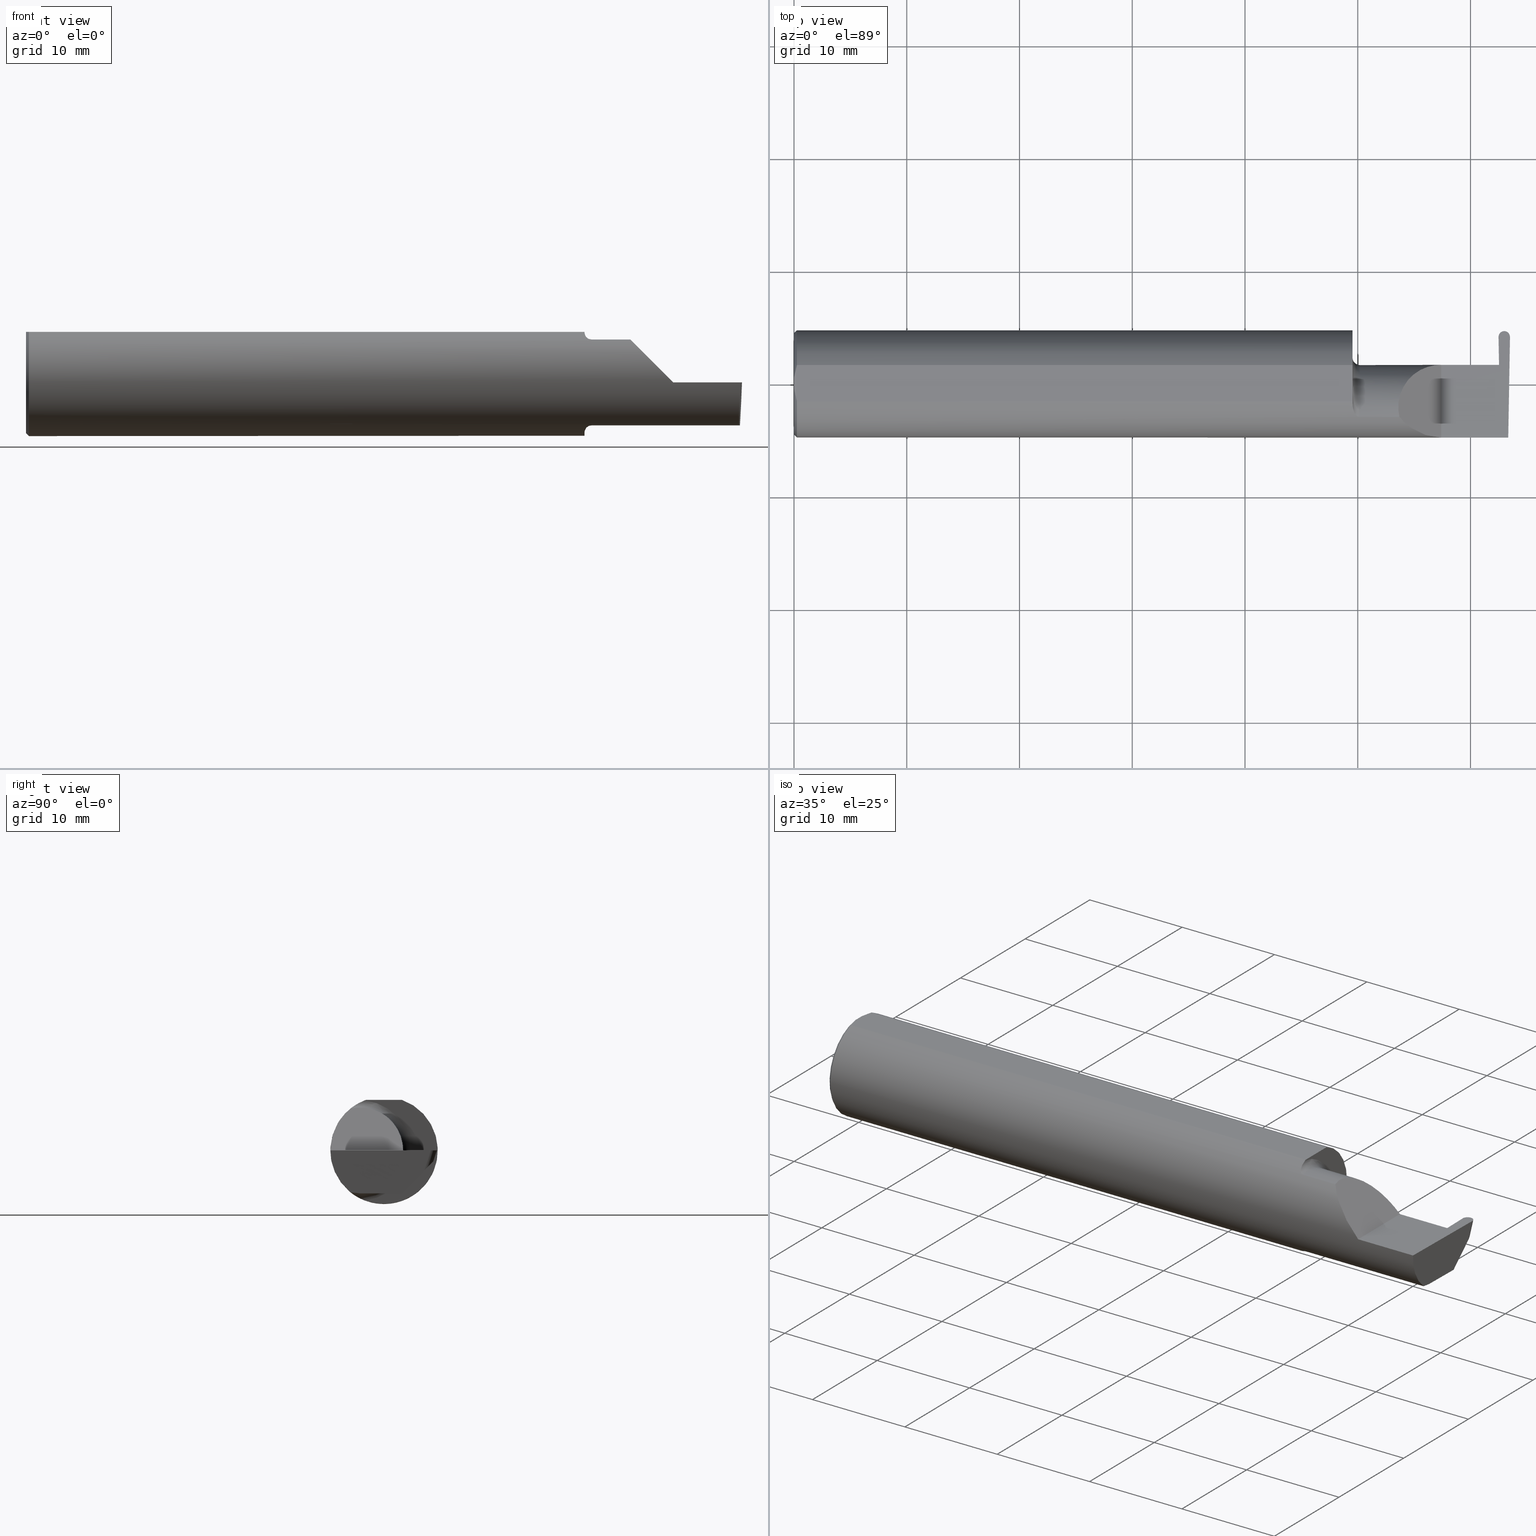
[diagram: canonical four-view strip — front | top / right | iso, engineering-drawing reading convention]
A machine part, canonical four-view strip (front | top / right | iso — engineering-drawing reading convention). The complete STEP part file that produces these views, byte-faithful:
ISO-10303-21;
HEADER;
FILE_DESCRIPTION (( 'STEP AP203' ),
    '1' );
FILE_NAME ('222104-GFR039-8.STEP',
    '2024-06-21T20:36:51',
    ( '' ),
    ( '' ),
    'SwSTEP 2.0',
    'SolidWorks 2022',
    '' );
FILE_SCHEMA (( 'CONFIG_CONTROL_DESIGN' ));
ENDSEC;

DATA;
#1 = DIRECTION ( 'NONE',  ( 0.7071067811865426878, 0.000000000000000000, -0.7071067811865523467 ) ) ;
#2 = ORIENTED_EDGE ( 'NONE', *, *, #375, .T. ) ;
#3 = DIRECTION ( 'NONE',  ( -1.000000000000000000, -0.000000000000000000, -0.000000000000000000 ) ) ;
#4 = AXIS2_PLACEMENT_3D ( 'NONE', #39, #424, #208 ) ;
#5 = DIRECTION ( 'NONE',  ( -1.000000000000000000, 2.008845683092791531E-16, -0.000000000000000000 ) ) ;
#6 = ORIENTED_EDGE ( 'NONE', *, *, #239, .T. ) ;
#7 = CONICAL_SURFACE ( 'NONE', #605, 0.1773500000000005072, 0.7853981633974551624 ) ;
#8 = VERTEX_POINT ( 'NONE', #708 ) ;
#9 = LINE ( 'NONE', #223, #251 ) ;
#10 = ORIENTED_EDGE ( 'NONE', *, *, #500, .T. ) ;
#11 = CARTESIAN_POINT ( 'NONE',  ( 1.972161949849308593, -0.1172600179964061462, 0.1461167706989260351 ) ) ;
#12 = DIRECTION ( 'NONE',  ( 0.000000000000000000, 0.000000000000000000, 1.000000000000000000 ) ) ;
#13 = VERTEX_POINT ( 'NONE', #263 ) ;
#14 = CARTESIAN_POINT ( 'NONE',  ( 2.491999529393823742, 0.1846499999999998975, -1.473175192682373633E-18 ) ) ;
#15 = VERTEX_POINT ( 'NONE', #493 ) ;
#16 = CARTESIAN_POINT ( 'NONE',  ( 2.260000000000000231, 0.06665000000000001479, 6.735557395310446214E-17 ) ) ;
#17 = LOCAL_TIME ( 13, 36, 51.00000000000000000, #548 ) ;
#18 = ORIENTED_EDGE ( 'NONE', *, *, #363, .T. ) ;
#19 = EDGE_CURVE ( 'NONE', #421, #273, #64, .T. ) ;
#20 = CARTESIAN_POINT ( 'NONE',  ( 2.150065971957465294, -0.1623470442677542591, 0.1099340280425336325 ) ) ;
#21 = ORIENTED_EDGE ( 'NONE', *, *, #216, .T. ) ;
#22 = CARTESIAN_POINT ( 'NONE',  ( 2.113883229301068312, -0.1172600179964008033, 0.1461167706989302539 ) ) ;
#23 = CC_DESIGN_DATE_AND_TIME_ASSIGNMENT ( #697, #602, ( #417 ) ) ;
#24 = ORIENTED_EDGE ( 'NONE', *, *, #264, .F. ) ;
#25 = CARTESIAN_POINT ( 'NONE',  ( 0.009999999999999346217, 0.06325108694718235836, 0.1763499999999999235 ) ) ;
#26 = VECTOR ( 'NONE', #34, 39.37007874015748143 ) ;
#27 = EDGE_CURVE ( 'NONE', #528, #266, #258, .T. ) ;
#28 = CARTESIAN_POINT ( 'NONE',  ( 2.454491755327868230, 0.06652820251299114418, -0.003487823687206694900 ) ) ;
#29 = PRODUCT_DEFINITION_SHAPE ( 'NONE', 'NONE',  #557 ) ;
#30 = LINE ( 'NONE', #83, #317 ) ;
#31 = CARTESIAN_POINT ( 'NONE',  ( 1.974999999999999867, -0.08335000000000000742, 0.000000000000000000 ) ) ;
#32 = DIRECTION ( 'NONE',  ( 1.000000000000000000, -1.209262122756677455E-14, -0.000000000000000000 ) ) ;
#33 = ORIENTED_EDGE ( 'NONE', *, *, #375, .F. ) ;
#34 = DIRECTION ( 'NONE',  ( 1.000000000000000000, -0.000000000000000000, -0.000000000000000000 ) ) ;
#35 = DIRECTION ( 'NONE',  ( 0.03490480639812535563, 0.000000000000000000, -0.9993906415863165194 ) ) ;
#36 = ORIENTED_EDGE ( 'NONE', *, *, #679, .F. ) ;
#37 = AXIS2_PLACEMENT_3D ( 'NONE', #459, #129, #115 ) ;
#38 = AXIS2_PLACEMENT_3D ( 'NONE', #414, #101, #593 ) ;
#39 = CARTESIAN_POINT ( 'NONE',  ( 0.009999999999999346217, 0.000000000000000000, 0.000000000000000000 ) ) ;
#40 = EDGE_CURVE ( 'NONE', #273, #298, #674, .T. ) ;
#41 = APPROVAL_DATE_TIME ( #372, #568 ) ;
#42 =( BOUNDED_CURVE ( )  B_SPLINE_CURVE ( 3, ( #229, #454, #404, #570 ),
 .UNSPECIFIED., .F., .T. ) 
 B_SPLINE_CURVE_WITH_KNOTS ( ( 4, 4 ),
 ( 3.187329633124814432, 4.698536687208079599 ),
 .UNSPECIFIED. ) 
 CURVE ( )  GEOMETRIC_REPRESENTATION_ITEM ( )  RATIONAL_B_SPLINE_CURVE ( ( 1.000000000000000000, 0.8185718802202308630, 0.8185718802202308630, 1.000000000000000000 ) ) 
 REPRESENTATION_ITEM ( '' )  );
#43 = CARTESIAN_POINT ( 'NONE',  ( 2.490236123071934315, -0.09477667630339453586, -0.1500000000000000777 ) ) ;
#44 = ORIENTED_EDGE ( 'NONE', *, *, #153, .F. ) ;
#45 = CALENDAR_DATE ( 2024, 21, 6 ) ;
#46 = LINE ( 'NONE', #253, #467 ) ;
#47 = EDGE_LOOP ( 'NONE', ( #33, #247, #262, #672 ) ) ;
#48 = EDGE_CURVE ( 'NONE', #266, #273, #132, .T. ) ;
#49 = SECURITY_CLASSIFICATION_LEVEL ( 'unclassified' ) ;
#50 = CC_DESIGN_APPROVAL ( #405, ( #557 ) ) ;
#51 = ORIENTED_EDGE ( 'NONE', *, *, #614, .F. ) ;
#52 = ORIENTED_EDGE ( 'NONE', *, *, #564, .F. ) ;
#53 = PERSON_AND_ORGANIZATION ( #513, #357 ) ;
#54 = CARTESIAN_POINT ( 'NONE',  ( 0.000000000000000000, 0.000000000000000000, 0.000000000000000000 ) ) ;
#55 = ORIENTED_EDGE ( 'NONE', *, *, #91, .F. ) ;
#56 = DIRECTION ( 'NONE',  ( 2.008845683092791284E-16, 1.000000000000000000, 0.000000000000000000 ) ) ;
#57 = DIRECTION ( 'NONE',  ( -0.03858184836401813700, -0.3087869137032490108, -0.9503484007996424454 ) ) ;
#58 = ORIENTED_EDGE ( 'NONE', *, *, #614, .T. ) ;
#59 = ORIENTED_EDGE ( 'NONE', *, *, #628, .T. ) ;
#60 = CARTESIAN_POINT ( 'NONE',  ( 1.949999999999999956, -0.06325108694718283020, 0.1763499999999999235 ) ) ;
#61 = ORIENTED_EDGE ( 'NONE', *, *, #211, .F. ) ;
#62 = ADVANCED_FACE ( 'NONE', ( #609 ), #381, .T. ) ;
#63 = CARTESIAN_POINT ( 'NONE',  ( 2.260000000000000231, -0.2500000000000000555, 2.939152317953647352E-17 ) ) ;
#64 = B_SPLINE_CURVE_WITH_KNOTS ( 'NONE', 3,
 ( #312, #257, #484, #204, #427, #489, #212, #435, #217, #645, #541, #367 ),
 .UNSPECIFIED., .F., .F.,
 ( 4, 2, 2, 2, 2, 4 ),
 ( 1.967976973726874814E-07, 0.0002120314145722337505, 0.0004238660314470947760, 0.0008475352651968044672, 0.001271204498946514050, 0.001694873732696223741 ),
 .UNSPECIFIED. ) ;
#65 = CARTESIAN_POINT ( 'NONE',  ( 2.479983000000000271, 0.1792524660908428602, -0.01661190125355829078 ) ) ;
#66 = EDGE_LOOP ( 'NONE', ( #668, #250, #339, #453, #159, #51, #316, #578, #496, #395 ) ) ;
#67 = CARTESIAN_POINT ( 'NONE',  ( -0.001039370078740541395, 0.1846500000000000363, 0.000000000000000000 ) ) ;
#68 = CYLINDRICAL_SURFACE ( 'NONE', #306, 0.01999999999999998307 ) ;
#69 = ORIENTED_EDGE ( 'NONE', *, *, #552, .T. ) ;
#70 = DIRECTION ( 'NONE',  ( 0.000000000000000000, -0.9510565162951534202, 0.3090169943749482284 ) ) ;
#71 = EDGE_CURVE ( 'NONE', #389, #480, #267, .T. ) ;
#72 = CYLINDRICAL_SURFACE ( 'NONE', #134, 0.1500000000000001055 ) ;
#73 = ORIENTED_EDGE ( 'NONE', *, *, #656, .F. ) ;
#74 = DIRECTION ( 'NONE',  ( 1.000000000000000000, 0.000000000000000000, -0.000000000000000000 ) ) ;
#75 = CIRCLE ( 'NONE', #4, 0.1873499999999999888 ) ;
#76 = AXIS2_PLACEMENT_3D ( 'NONE', #54, #314, #265 ) ;
#77 = LINE ( 'NONE', #689, #151 ) ;
#78 = ORIENTED_EDGE ( 'NONE', *, *, #537, .F. ) ;
#79 = CARTESIAN_POINT ( 'NONE',  ( 1.958475602106621638, -0.1064978748893404686, 0.1542035505680384444 ) ) ;
#80 = CARTESIAN_POINT ( 'NONE',  ( -0.001039370078740541395, 0.06030305154315079852, -0.1500000000000000500 ) ) ;
#81 = ORIENTED_EDGE ( 'NONE', *, *, #289, .T. ) ;
#82 =( NAMED_UNIT ( * ) SI_UNIT ( $, .STERADIAN. ) SOLID_ANGLE_UNIT ( ) );
#83 = CARTESIAN_POINT ( 'NONE',  ( 2.461229936036296806, 0.2175248088308011640, 0.007221757287652132672 ) ) ;
#84 = CC_DESIGN_PERSON_AND_ORGANIZATION_ASSIGNMENT ( #432, #104, ( #351 ) ) ;
#85 = VECTOR ( 'NONE', #311, 39.37007874015748143 ) ;
#86 = CARTESIAN_POINT ( 'NONE',  ( 2.454369957840859318, 0.06640640502598234296, -0.006975647374413389799 ) ) ;
#87 = DIRECTION ( 'NONE',  ( 0.9992386149554827179, 0.01744177490282312892, 0.03489949670250103858 ) ) ;
#88 = VERTEX_POINT ( 'NONE', #497 ) ;
#89 = FACE_OUTER_BOUND ( 'NONE', #707, .T. ) ;
#90 = CARTESIAN_POINT ( 'NONE',  ( 0.001595548104417217512, -0.03385300050298979679, 0.1763499999999999235 ) ) ;
#91 = EDGE_CURVE ( 'NONE', #15, #108, #662, .T. ) ;
#92 = APPROVAL_STATUS ( 'not_yet_approved' ) ;
#93 = FACE_OUTER_BOUND ( 'NONE', #434, .T. ) ;
#94 = ORIENTED_EDGE ( 'NONE', *, *, #40, .T. ) ;
#95 = LINE ( 'NONE', #495, #174 ) ;
#96 = EDGE_CURVE ( 'NONE', #241, #108, #387, .T. ) ;
#97 = DIRECTION ( 'NONE',  ( -1.000000000000000000, 2.008845683092791531E-16, -0.000000000000000000 ) ) ;
#98 = DIRECTION ( 'NONE',  ( 1.000000000000000000, -0.000000000000000000, -0.000000000000000000 ) ) ;
#99 = EDGE_CURVE ( 'NONE', #480, #114, #376, .T. ) ;
#100 = CARTESIAN_POINT ( 'NONE',  ( 3.749399456654646757E-32, -0.1873499999999999610, 3.061616997868383634E-16 ) ) ;
#101 = DIRECTION ( 'NONE',  ( 0.000000000000000000, 0.000000000000000000, 1.000000000000000000 ) ) ;
#102 = CARTESIAN_POINT ( 'NONE',  ( 0.000000000000000000, -0.06325108694718235836, 0.1763499999999999235 ) ) ;
#103 = CARTESIAN_POINT ( 'NONE',  ( 2.467080046351379341, -0.0002709026822638745764, -0.1500000000000001332 ) ) ;
#104 = PERSON_AND_ORGANIZATION_ROLE ( 'design_owner' ) ;
#105 = LOCAL_TIME ( 13, 36, 51.00000000000000000, #653 ) ;
#106 = CARTESIAN_POINT ( 'NONE',  ( 2.490435576448724042, -0.08335000000000064579, -0.1500000000000000500 ) ) ;
#107 = ORIENTED_EDGE ( 'NONE', *, *, #294, .F. ) ;
#108 = VERTEX_POINT ( 'NONE', #623 ) ;
#109 = EDGE_CURVE ( 'NONE', #380, #114, #465, .T. ) ;
#110 = LINE ( 'NONE', #658, #85 ) ;
#111 = ORIENTED_EDGE ( 'NONE', *, *, #303, .T. ) ;
#112 = ADVANCED_FACE ( 'NONE', ( #450 ), #508, .F. ) ;
#113 = DIRECTION ( 'NONE',  ( 1.000000000000000000, 0.000000000000000000, 0.000000000000000000 ) ) ;
#114 = VERTEX_POINT ( 'NONE', #16 ) ;
#115 = DIRECTION ( 'NONE',  ( 0.000000000000000000, 0.000000000000000000, -1.000000000000000000 ) ) ;
#116 =( BOUNDED_CURVE ( )  B_SPLINE_CURVE ( 3, ( #330, #236, #558, #505 ),
 .UNSPECIFIED., .F., .F. ) 
 B_SPLINE_CURVE_WITH_KNOTS ( ( 4, 4 ),
 ( 4.726241273561300638, 6.237448327644592005 ),
 .UNSPECIFIED. ) 
 CURVE ( )  GEOMETRIC_REPRESENTATION_ITEM ( )  RATIONAL_B_SPLINE_CURVE ( ( 1.000000000000000000, 0.8185718802202247568, 0.8185718802202247568, 1.000000000000000000 ) ) 
 REPRESENTATION_ITEM ( '' )  );
#117 = VECTOR ( 'NONE', #139, 39.37007874015748143 ) ;
#118 = DIRECTION ( 'NONE',  ( -1.000000000000000000, 0.000000000000000000, 1.224646799147353947E-16 ) ) ;
#119 = ORIENTED_EDGE ( 'NONE', *, *, #485, .T. ) ;
#120 = PRODUCT_DEFINITION_FORMATION_WITH_SPECIFIED_SOURCE ( 'ANY', '', #351, .NOT_KNOWN. ) ;
#121 = PLANE ( 'NONE',  #701 ) ;
#122 = ADVANCED_FACE ( 'NONE', ( #176 ), #337, .F. ) ;
#123 = CARTESIAN_POINT ( 'NONE',  ( 2.479744952083223097, 0.1846500000000000363, 0.000000000000000000 ) ) ;
#124 = ORIENTED_EDGE ( 'NONE', *, *, #635, .F. ) ;
#125 = CARTESIAN_POINT ( 'NONE',  ( 1.963163223656403389, -0.1119926267047276353, 0.1502091925606063583 ) ) ;
#126 = ADVANCED_FACE ( 'NONE', ( #567 ), #669, .F. ) ;
#127 = CARTESIAN_POINT ( 'NONE',  ( 2.476527545332699809, 0.1360682002906238031, -0.08479804562189670325 ) ) ;
#128 = ORIENTED_EDGE ( 'NONE', *, *, #410, .F. ) ;
#129 = DIRECTION ( 'NONE',  ( 1.000000000000000000, 0.000000000000000000, 0.000000000000000000 ) ) ;
#130 = CARTESIAN_POINT ( 'NONE',  ( 2.479982999999999382, 0.1827448014506314888, -0.005863598210441649597 ) ) ;
#131 = ORIENTED_EDGE ( 'NONE', *, *, #295, .F. ) ;
#132 = CIRCLE ( 'NONE', #305, 0.1749999999999999889 ) ;
#133 = CARTESIAN_POINT ( 'NONE',  ( 2.876828993045917215, 0.1873499999999998500, 0.1763499999999999235 ) ) ;
#134 = AXIS2_PLACEMENT_3D ( 'NONE', #279, #5, #676 ) ;
#135 = LOCAL_TIME ( 13, 36, 51.00000000000000000, #428 ) ;
#136 = LINE ( 'NONE', #80, #26 ) ;
#137 = ORIENTED_EDGE ( 'NONE', *, *, #607, .F. ) ;
#138 = CARTESIAN_POINT ( 'NONE',  ( 0.009999999999999346217, 0.06325108694718235836, 0.1763499999999999235 ) ) ;
#139 = DIRECTION ( 'NONE',  ( -1.000000000000000000, 2.008845683092791284E-16, -0.000000000000000000 ) ) ;
#140 = DIRECTION ( 'NONE',  ( 0.000000000000000000, -1.000000000000000000, 0.000000000000000000 ) ) ;
#141 = EDGE_CURVE ( 'NONE', #322, #194, #42, .T. ) ;
#142 = VECTOR ( 'NONE', #523, 39.37007874015748143 ) ;
#143 = EDGE_LOOP ( 'NONE', ( #315, #344, #58, #566 ) ) ;
#144 = ADVANCED_FACE ( 'NONE', ( #665 ), #121, .F. ) ;
#145 = PERSON_AND_ORGANIZATION_ROLE ( 'design_supplier' ) ;
#146 = LINE ( 'NONE', #639, #117 ) ;
#147 = ORIENTED_EDGE ( 'NONE', *, *, #683, .T. ) ;
#148 = CC_DESIGN_PERSON_AND_ORGANIZATION_ASSIGNMENT ( #156, #260, ( #120 ) ) ;
#149 = DIRECTION ( 'NONE',  ( -1.000000000000000000, -0.000000000000000000, -0.000000000000000000 ) ) ;
#150 = ORIENTED_EDGE ( 'NONE', *, *, #183, .T. ) ;
#151 = VECTOR ( 'NONE', #586, 39.37007874015748854 ) ;
#152 = DATE_AND_TIME ( #313, #17 ) ;
#153 = EDGE_CURVE ( 'NONE', #266, #511, #222, .T. ) ;
#154 = CARTESIAN_POINT ( 'NONE',  ( 2.454613552814877142, 0.06664999999999994540, 0.000000000000000000 ) ) ;
#155 = CARTESIAN_POINT ( 'NONE',  ( 1.949999999999999956, 0.1873499999999999055, 0.000000000000000000 ) ) ;
#156 = PERSON_AND_ORGANIZATION ( #513, #357 ) ;
#157 = LINE ( 'NONE', #379, #647 ) ;
#158 = CARTESIAN_POINT ( 'NONE',  ( 0.000000000000000000, 0.000000000000000000, 0.000000000000000000 ) ) ;
#159 = ORIENTED_EDGE ( 'NONE', *, *, #679, .T. ) ;
#160 = VERTEX_POINT ( 'NONE', #168 ) ;
#161 = CONICAL_SURFACE ( 'NONE', #318, 0.1773500000000005072, 0.7853981633974551624 ) ;
#162 = FACE_OUTER_BOUND ( 'NONE', #403, .T. ) ;
#163 = ORIENTED_EDGE ( 'NONE', *, *, #635, .T. ) ;
#164 = VERTEX_POINT ( 'NONE', #290 ) ;
#165 = ADVANCED_FACE ( 'NONE', ( #233 ), #512, .T. ) ;
#166 = CARTESIAN_POINT ( 'NONE',  ( 2.733184360054360607, -0.08335000000000064579, -0.1500000000000000500 ) ) ;
#167 = ORIENTED_EDGE ( 'NONE', *, *, #666, .F. ) ;
#168 = CARTESIAN_POINT ( 'NONE',  ( 2.459982749943019797, 0.1634987106945234303, 0.000000000000000000 ) ) ;
#169 = CARTESIAN_POINT ( 'NONE',  ( 2.479744952083223097, 0.1846500000000000363, 0.000000000000000000 ) ) ;
#170 = ORIENTED_EDGE ( 'NONE', *, *, #579, .T. ) ;
#171 = DIRECTION ( 'NONE',  ( 0.000000000000000000, -0.7071067811865516806, 0.7071067811865434649 ) ) ;
#172 = FACE_OUTER_BOUND ( 'NONE', #569, .T. ) ;
#173 = VERTEX_POINT ( 'NONE', #286 ) ;
#174 = VECTOR ( 'NONE', #1, 39.37007874015748143 ) ;
#175 = EDGE_CURVE ( 'NONE', #173, #322, #116, .T. ) ;
#176 = FACE_OUTER_BOUND ( 'NONE', #544, .T. ) ;
#177 = LINE ( 'NONE', #398, #232 ) ;
#178 = ORIENTED_EDGE ( 'NONE', *, *, #99, .F. ) ;
#179 = CARTESIAN_POINT ( 'NONE',  ( 2.155331797197862720, 0.06665000000000005642, 0.1046682028021362204 ) ) ;
#180 = CARTESIAN_POINT ( 'NONE',  ( 2.459766740043397792, 0.1758739095557346477, 2.477352571440044463E-18 ) ) ;
#181 = ORIENTED_EDGE ( 'NONE', *, *, #442, .F. ) ;
#182 = CARTESIAN_POINT ( 'NONE',  ( 1.969481469043492750, -0.1163560528186165927, 0.1468472430636323378 ) ) ;
#183 = EDGE_CURVE ( 'NONE', #88, #677, #225, .T. ) ;
#184 = ORIENTED_EDGE ( 'NONE', *, *, #579, .F. ) ;
#185 = AXIS2_PLACEMENT_3D ( 'NONE', #400, #171, #340 ) ;
#186 = CARTESIAN_POINT ( 'NONE',  ( 0.001616639753276218755, 0.03405189565400963680, 0.1763499999999999235 ) ) ;
#187 = ADVANCED_FACE ( 'NONE', ( #580 ), #634, .F. ) ;
#188 = LINE ( 'NONE', #407, #694 ) ;
#189 = DIRECTION ( 'NONE',  ( 0.03547001781078869959, 0.000000000000000000, -0.9993707409347654114 ) ) ;
#190 = CARTESIAN_POINT ( 'NONE',  ( 2.260000000000000231, -0.1873499999999999888, 2.939152317953647352E-17 ) ) ;
#191 = CARTESIAN_POINT ( 'NONE',  ( 2.490435576448724042, -0.08335000000000064579, -0.1500000000000000500 ) ) ;
#192 = DIRECTION ( 'NONE',  ( -0.01745240643727647561, 0.9998476951563912696, -0.000000000000000000 ) ) ;
#193 = EDGE_CURVE ( 'NONE', #224, #15, #30, .T. ) ;
#194 = VERTEX_POINT ( 'NONE', #297 ) ;
#195 = CC_DESIGN_APPROVAL ( #568, ( #417 ) ) ;
#196 = CARTESIAN_POINT ( 'NONE',  ( 2.454613552814877142, 0.06664999999999994540, 0.000000000000000000 ) ) ;
#197 = CARTESIAN_POINT ( 'NONE',  ( 1.949999999999999956, -0.06851976604679065053, 0.1743704796142198643 ) ) ;
#198 = ORIENTED_EDGE ( 'NONE', *, *, #48, .F. ) ;
#199 = PERSON_AND_ORGANIZATION ( #513, #357 ) ;
#200 = CARTESIAN_POINT ( 'NONE',  ( 2.493859163031828086, -0.1873499999999999888, 0.000000000000000000 ) ) ;
#201 = EDGE_CURVE ( 'NONE', #326, #288, #352, .T. ) ;
#202 = APPROVAL_ROLE ( '' ) ;
#203 = FACE_OUTER_BOUND ( 'NONE', #554, .T. ) ;
#204 = CARTESIAN_POINT ( 'NONE',  ( 1.965028532764137914, -0.1137241120808233502, -0.1488947809299404901 ) ) ;
#205 = AXIS2_PLACEMENT_3D ( 'NONE', #155, #606, #56 ) ;
#206 = AXIS2_PLACEMENT_3D ( 'NONE', #31, #463, #140 ) ;
#207 = PERSON_AND_ORGANIZATION_ROLE ( 'classification_officer' ) ;
#208 = DIRECTION ( 'NONE',  ( 0.000000000000000000, 0.000000000000000000, -1.000000000000000000 ) ) ;
#209 = ORIENTED_EDGE ( 'NONE', *, *, #447, .T. ) ;
#210 = CARTESIAN_POINT ( 'NONE',  ( 0.000000000000000000, 0.000000000000000000, 0.000000000000000000 ) ) ;
#211 = EDGE_CURVE ( 'NONE', #464, #421, #413, .T. ) ;
#212 = CARTESIAN_POINT ( 'NONE',  ( 1.956304331342286762, -0.1022198306720689814, -0.1570962426853819427 ) ) ;
#213 = PERSON_AND_ORGANIZATION ( #513, #357 ) ;
#214 = LINE ( 'NONE', #654, #604 ) ;
#215 = ORIENTED_EDGE ( 'NONE', *, *, #193, .F. ) ;
#216 = EDGE_CURVE ( 'NONE', #108, #288, #293, .T. ) ;
#217 = CARTESIAN_POINT ( 'NONE',  ( 1.951843912362378308, -0.08846956905169085783, -0.1652353808078972919 ) ) ;
#218 = VECTOR ( 'NONE', #462, 39.37007874015748143 ) ;
#219 = CARTESIAN_POINT ( 'NONE',  ( 0.009999999999999346217, 0.000000000000000000, 0.000000000000000000 ) ) ;
#220 = ORIENTED_EDGE ( 'NONE', *, *, #666, .T. ) ;
#221 = ORIENTED_EDGE ( 'NONE', *, *, #71, .F. ) ;
#222 = B_SPLINE_CURVE_WITH_KNOTS ( 'NONE', 3,
 ( #563, #574, #620, #346, #678, #274, #79, #125, #625, #182, #11, #281 ),
 .UNSPECIFIED., .F., .F.,
 ( 4, 2, 2, 2, 2, 4 ),
 ( 4.423516731080767705E-05, 0.0004615475116586697287, 0.0008788598560065317804, 0.001296172200354393832, 0.001504828372528324966, 0.001713484544702256534 ),
 .UNSPECIFIED. ) ;
#223 = CARTESIAN_POINT ( 'NONE',  ( 2.499996951313945281, 0.1642836551803450174, 0.000000000000000000 ) ) ;
#224 = VERTEX_POINT ( 'NONE', #411 ) ;
#225 = LINE ( 'NONE', #519, #218 ) ;
#226 = EDGE_CURVE ( 'NONE', #108, #292, #146, .T. ) ;
#227 = DIRECTION ( 'NONE',  ( 1.000000000000000000, 0.000000000000000000, 0.000000000000000000 ) ) ;
#228 = EDGE_LOOP ( 'NONE', ( #170, #492, #2 ) ) ;
#229 = CARTESIAN_POINT ( 'NONE',  ( 2.479983000000000271, 0.1722364714470108749, -0.03806658009613868993 ) ) ;
#230 = DIRECTION ( 'NONE',  ( -0.000000000000000000, 1.000000000000000000, -0.000000000000000000 ) ) ;
#231 = ORIENTED_EDGE ( 'NONE', *, *, #422, .F. ) ;
#232 = VECTOR ( 'NONE', #338, 39.37007874015748854 ) ;
#233 = FACE_OUTER_BOUND ( 'NONE', #562, .T. ) ;
#234 = DIRECTION ( 'NONE',  ( -0.01745240643727691970, -0.9998476951563912696, 0.000000000000000000 ) ) ;
#235 = VERTEX_POINT ( 'NONE', #25 ) ;
#236 = CARTESIAN_POINT ( 'NONE',  ( 2.461886187134931792, 0.1583681512725874097, -0.05193490027056231473 ) ) ;
#237 = CARTESIAN_POINT ( 'NONE',  ( 2.217482999999999649, -0.1172600179964004702, 0.1461167706989304760 ) ) ;
#238 = ORIENTED_EDGE ( 'NONE', *, *, #109, .F. ) ;
#239 = EDGE_CURVE ( 'NONE', #288, #160, #583, .T. ) ;
#240 =( CONVERSION_BASED_UNIT ( 'INCH', #632 ) LENGTH_UNIT ( ) NAMED_UNIT ( #576 ) );
#241 = VERTEX_POINT ( 'NONE', #349 ) ;
#242 = AXIS2_PLACEMENT_3D ( 'NONE', #416, #358, #243 ) ;
#243 = DIRECTION ( 'NONE',  ( -0.7071067811865509034, 0.000000000000000000, 0.7071067811865440200 ) ) ;
#244 = ADVANCED_FACE ( 'NONE', ( #361 ), #246, .F. ) ;
#245 = PLANE ( 'NONE',  #383 ) ;
#246 = PLANE ( 'NONE',  #242 ) ;
#247 = ORIENTED_EDGE ( 'NONE', *, *, #442, .T. ) ;
#248 = B_SPLINE_CURVE_WITH_KNOTS ( 'NONE', 3,
 ( #686, #186, #631, #138 ),
 .UNSPECIFIED., .F., .F.,
 ( 4, 4 ),
 ( 0.01188664626022267051, 0.01304646959483758001 ),
 .UNSPECIFIED. ) ;
#249 = DIRECTION ( 'NONE',  ( -1.208525472944662949E-14, -0.9993908270190957621, 0.03489949670250104552 ) ) ;
#250 = ORIENTED_EDGE ( 'NONE', *, *, #628, .F. ) ;
#251 = VECTOR ( 'NONE', #234, 39.37007874015748143 ) ;
#252 = CARTESIAN_POINT ( 'NONE',  ( 0.000000000000000000, 0.01880691362239451242, 0.1763499999999999235 ) ) ;
#253 = CARTESIAN_POINT ( 'NONE',  ( 1.949999999999999956, 0.1873500000000000165, 0.1763499999999999235 ) ) ;
#254 = ORIENTED_EDGE ( 'NONE', *, *, #341, .T. ) ;
#255 = PERSON_AND_ORGANIZATION ( #513, #357 ) ;
#256 = CARTESIAN_POINT ( 'NONE',  ( 2.461673250476406061, 0.06664999999999984825, 0.000000000000000000 ) ) ;
#257 = CARTESIAN_POINT ( 'NONE',  ( 1.972174967710399240, -0.1172600179964005257, -0.1461167706989303927 ) ) ;
#258 = CIRCLE ( 'NONE', #525, 0.1873499999999999888 ) ;
#259 = AXIS2_PLACEMENT_3D ( 'NONE', #350, #249, #572 ) ;
#260 = PERSON_AND_ORGANIZATION_ROLE ( 'creator' ) ;
#261 = CARTESIAN_POINT ( 'NONE',  ( 2.490083369990258255, -0.1061291577212410131, -0.1486999626928447171 ) ) ;
#262 = ORIENTED_EDGE ( 'NONE', *, *, #303, .F. ) ;
#263 = CARTESIAN_POINT ( 'NONE',  ( 0.000000000000000000, 0.000000000000000000, -0.1773500000000005072 ) ) ;
#264 = EDGE_CURVE ( 'NONE', #630, #385, #374, .T. ) ;
#265 = DIRECTION ( 'NONE',  ( 0.000000000000000000, 0.000000000000000000, -1.000000000000000000 ) ) ;
#266 = VERTEX_POINT ( 'NONE', #197 ) ;
#267 = LINE ( 'NONE', #100, #342 ) ;
#268 = CARTESIAN_POINT ( 'NONE',  ( 2.500199259956601416, 0.1758739095557345922, -2.477352571440047159E-18 ) ) ;
#269 = CC_DESIGN_DATE_AND_TIME_ASSIGNMENT ( #423, #436, ( #557 ) ) ;
#270 = ORIENTED_EDGE ( 'NONE', *, *, #595, .T. ) ;
#271 = CC_DESIGN_APPROVAL ( #412, ( #120 ) ) ;
#272 = CARTESIAN_POINT ( 'NONE',  ( 2.467966470606175911, 0.1846499999999999808, 1.473175192682370359E-18 ) ) ;
#273 = VERTEX_POINT ( 'NONE', #531 ) ;
#274 = CARTESIAN_POINT ( 'NONE',  ( 1.956287624083520083, -0.1021858045380144991, 0.1571187174372875028 ) ) ;
#275 = ADVANCED_FACE ( 'NONE', ( #93 ), #304, .F. ) ;
#276 = CARTESIAN_POINT ( 'NONE',  ( 2.480221047916776556, 0.1846500000000000363, 0.000000000000000000 ) ) ;
#277 = ORIENTED_EDGE ( 'NONE', *, *, #552, .F. ) ;
#278 = DIRECTION ( 'NONE',  ( 0.000000000000000000, -0.3090169943749481729, -0.9510565162951533091 ) ) ;
#279 = CARTESIAN_POINT ( 'NONE',  ( 1.949999999999999956, -0.08335000000000000742, 0.000000000000000000 ) ) ;
#280 = EDGE_LOOP ( 'NONE', ( #94, #556, #504, #659 ) ) ;
#281 = CARTESIAN_POINT ( 'NONE',  ( 1.974999999999999867, -0.1172600179964006506, 0.1461167706989304205 ) ) ;
#282 = EDGE_CURVE ( 'NONE', #399, #235, #248, .T. ) ;
#283 = LINE ( 'NONE', #498, #285 ) ;
#284 = VERTEX_POINT ( 'NONE', #534 ) ;
#285 = VECTOR ( 'NONE', #230, 39.37007874015748143 ) ;
#286 = CARTESIAN_POINT ( 'NONE',  ( 2.462797441937035980, 0.1409715355924574254, -0.06933151595069247941 ) ) ;
#287 = DIRECTION ( 'NONE',  ( 0.03858184836401813700, 0.3087869137032490663, 0.9503484007996424454 ) ) ;
#288 = VERTEX_POINT ( 'NONE', #256 ) ;
#289 = EDGE_CURVE ( 'NONE', #528, #298, #46, .T. ) ;
#290 = CARTESIAN_POINT ( 'NONE',  ( 2.479982999999999382, 0.1827448014506314888, -0.005863598210441649597 ) ) ;
#291 = DIRECTION ( 'NONE',  ( 0.03490480639812536257, 0.000000000000000000, 0.9993906415863165194 ) ) ;
#292 = VERTEX_POINT ( 'NONE', #487 ) ;
#293 = LINE ( 'NONE', #478, #559 ) ;
#294 = EDGE_CURVE ( 'NONE', #194, #88, #214, .T. ) ;
#295 = EDGE_CURVE ( 'NONE', #630, #528, #703, .T. ) ;
#296 = DIRECTION ( 'NONE',  ( -0.9992386149554827179, 0.01744177490282357301, 0.03489949670250104552 ) ) ;
#297 = CARTESIAN_POINT ( 'NONE',  ( 2.497168558062964117, 0.1409715355924573699, -0.06933151595069257656 ) ) ;
#298 = VERTEX_POINT ( 'NONE', #699 ) ;
#299 = CC_DESIGN_PERSON_AND_ORGANIZATION_ASSIGNMENT ( #494, #302, ( #557 ) ) ;
#300 = CARTESIAN_POINT ( 'NONE',  ( 2.459969048686054816, 0.1642836551803449618, 0.000000000000000000 ) ) ;
#301 = ORIENTED_EDGE ( 'NONE', *, *, #141, .T. ) ;
#302 = PERSON_AND_ORGANIZATION_ROLE ( 'creator' ) ;
#303 = EDGE_CURVE ( 'NONE', #630, #284, #75, .T. ) ;
#304 = PLANE ( 'NONE',  #514 ) ;
#305 = AXIS2_PLACEMENT_3D ( 'NONE', #704, #97, #439 ) ;
#306 = AXIS2_PLACEMENT_3D ( 'NONE', #127, #671, #460 ) ;
#307 = DATE_AND_TIME ( #368, #545 ) ;
#308 = ADVANCED_FACE ( 'NONE', ( #203 ), #617, .F. ) ;
#309 = CARTESIAN_POINT ( 'NONE',  ( 2.461673250476406061, 0.06664999999999984825, 0.000000000000000000 ) ) ;
#310 = B_SPLINE_CURVE_WITH_KNOTS ( 'NONE', 3,
 ( #343, #86, #28, #196 ),
 .UNSPECIFIED., .F., .F.,
 ( 4, 4 ),
 ( 0.000000000000000000, 1.000000000000000000 ),
 .UNSPECIFIED. ) ;
#311 = DIRECTION ( 'NONE',  ( -0.03858184836401801210, 0.3087869137032490663, 0.9503484007996426675 ) ) ;
#312 = CARTESIAN_POINT ( 'NONE',  ( 1.974999999999999867, -0.1172600179964006090, -0.1461167706989303927 ) ) ;
#313 = CALENDAR_DATE ( 2024, 21, 6 ) ;
#314 = DIRECTION ( 'NONE',  ( -1.000000000000000000, -0.000000000000000000, -0.000000000000000000 ) ) ;
#315 = ORIENTED_EDGE ( 'NONE', *, *, #216, .F. ) ;
#316 = ORIENTED_EDGE ( 'NONE', *, *, #226, .F. ) ;
#317 = VECTOR ( 'NONE', #466, 39.37007874015748854 ) ;
#318 = AXIS2_PLACEMENT_3D ( 'NONE', #210, #425, #596 ) ;
#319 = ADVANCED_FACE ( 'NONE', ( #706 ), #161, .T. ) ;
#320 = APPLICATION_PROTOCOL_DEFINITION ( 'international standard', 'config_control_design', 1994, #642 ) ;
#321 = DIRECTION ( 'NONE',  ( 1.000000000000000000, 0.000000000000000000, 0.000000000000000000 ) ) ;
#322 = VERTEX_POINT ( 'NONE', #648 ) ;
#323 = EDGE_LOOP ( 'NONE', ( #163, #438, #301, #475, #73, #333 ) ) ;
#324 = DIRECTION ( 'NONE',  ( -0.03858184836401801210, 0.3087869137032490108, 0.9503484007996427785 ) ) ;
#325 = MANIFOLD_SOLID_BREP ( 'Radii', #636 ) ;
#326 = VERTEX_POINT ( 'NONE', #154 ) ;
#327 = ORIENTED_EDGE ( 'NONE', *, *, #96, .T. ) ;
#328 = DIRECTION ( 'NONE',  ( -1.000000000000000000, -0.000000000000000000, -0.000000000000000000 ) ) ;
#329 = ORIENTED_EDGE ( 'NONE', *, *, #656, .T. ) ;
#330 = CARTESIAN_POINT ( 'NONE',  ( 2.462797441937035980, 0.1409715355924574254, -0.06933151595069247941 ) ) ;
#331 = AXIS2_PLACEMENT_3D ( 'NONE', #219, #227, #456 ) ;
#332 = CARTESIAN_POINT ( 'NONE',  ( 2.499983250056980300, 0.1634987106945233470, 0.000000000000000000 ) ) ;
#333 = ORIENTED_EDGE ( 'NONE', *, *, #193, .T. ) ;
#334 = CARTESIAN_POINT ( 'NONE',  ( 2.464993749086574315, 0.06048930266824217861, -0.09334019187383170435 ) ) ;
#335 = DIRECTION ( 'NONE',  ( 0.000000000000000000, 0.000000000000000000, -1.000000000000000000 ) ) ;
#336 = EDGE_LOOP ( 'NONE', ( #209, #270, #329, #150 ) ) ;
#337 = PLANE ( 'NONE',  #440 ) ;
#338 = DIRECTION ( 'NONE',  ( -0.001239419280281171170, 0.9999992319196288060, 0.000000000000000000 ) ) ;
#339 = ORIENTED_EDGE ( 'NONE', *, *, #705, .T. ) ;
#340 = DIRECTION ( 'NONE',  ( 0.000000000000000000, -0.7071067811865433539, -0.7071067811865515695 ) ) ;
#341 = EDGE_CURVE ( 'NONE', #164, #501, #110, .T. ) ;
#342 = VECTOR ( 'NONE', #3, 39.37007874015748143 ) ;
#343 = CARTESIAN_POINT ( 'NONE',  ( 2.454248160353850849, 0.06628460753897352786, -0.01046347106162008600 ) ) ;
#344 = ORIENTED_EDGE ( 'NONE', *, *, #226, .T. ) ;
#345 = CIRCLE ( 'NONE', #331, 0.1873499999999999888 ) ;
#346 = CARTESIAN_POINT ( 'NONE',  ( 1.951829077486399555, -0.08839624499054646312, 0.1652742498708037189 ) ) ;
#347 = CARTESIAN_POINT ( 'NONE',  ( 2.499996951313945281, 0.1642836551803450174, 0.000000000000000000 ) ) ;
#348 = ORIENTED_EDGE ( 'NONE', *, *, #239, .F. ) ;
#349 = CARTESIAN_POINT ( 'NONE',  ( 2.467183016265471096, -0.08335000000000011844, -0.1500000000000000500 ) ) ;
#350 = CARTESIAN_POINT ( 'NONE',  ( 2.461673250476406061, 0.06664999999999984825, 0.000000000000000000 ) ) ;
#351 = PRODUCT ( '222104-GFR039-8', '222104-GFR039-8', '', ( #481 ) ) ;
#352 = LINE ( 'NONE', #409, #382 ) ;
#353 = EDGE_CURVE ( 'NONE', #501, #521, #437, .T. ) ;
#354 = LINE ( 'NONE', #237, #675 ) ;
#355 = AXIS2_PLACEMENT_3D ( 'NONE', #420, #474, #189 ) ;
#356 = DIRECTION ( 'NONE',  ( -0.03549161113179510191, 0.03487750912278208409, 0.9987611851171729338 ) ) ;
#357 = ORGANIZATION ( 'UNSPECIFIED', 'UNSPECIFIED', '' ) ;
#358 = DIRECTION ( 'NONE',  ( -0.7071067811865441310, 0.000000000000000000, -0.7071067811865510144 ) ) ;
#359 = ORIENTED_EDGE ( 'NONE', *, *, #19, .F. ) ;
#360 = COORDINATED_UNIVERSAL_TIME_OFFSET ( 8, 0, .BEHIND. ) ;
#361 = FACE_OUTER_BOUND ( 'NONE', #619, .T. ) ;
#362 = EDGE_LOOP ( 'NONE', ( #611, #119, #348, #550, #36, #178, #221, #445, #573 ) ) ;
#363 = EDGE_CURVE ( 'NONE', #464, #677, #518, .T. ) ;
#364 = APPROVAL_DATE_TIME ( #152, #405 ) ;
#365 = DIRECTION ( 'NONE',  ( 0.000000000000000000, -0.9510565162951534202, 0.3090169943749480619 ) ) ;
#366 = AXIS2_PLACEMENT_3D ( 'NONE', #133, #522, #74 ) ;
#367 = CARTESIAN_POINT ( 'NONE',  ( 1.949999999999999956, -0.06851976604679065053, -0.1743704796142198643 ) ) ;
#368 = CALENDAR_DATE ( 2024, 21, 6 ) ;
#369 =( BOUNDED_CURVE ( )  B_SPLINE_CURVE ( 3, ( #603, #549, #600, #200 ),
 .UNSPECIFIED., .F., .F. ) 
 B_SPLINE_CURVE_WITH_KNOTS ( ( 4, 4 ),
 ( 0.2128041086811019444, 1.107331509589550622 ),
 .UNSPECIFIED. ) 
 CURVE ( )  GEOMETRIC_REPRESENTATION_ITEM ( )  RATIONAL_B_SPLINE_CURVE ( ( 1.000000000000000000, 0.9344226172588800949, 0.9344226172588800949, 1.000000000000000000 ) ) 
 REPRESENTATION_ITEM ( '' )  );
#370 = DIRECTION ( 'NONE',  ( -0.03701368837992478206, -0.7066222423871548752, -0.7066222423871629799 ) ) ;
#371 = ORIENTED_EDGE ( 'NONE', *, *, #175, .F. ) ;
#372 = DATE_AND_TIME ( #490, #135 ) ;
#373 = CARTESIAN_POINT ( 'NONE',  ( 0.000000000000000000, -0.01880691362239451242, 0.1763499999999999235 ) ) ;
#374 = B_SPLINE_CURVE_WITH_KNOTS ( 'NONE', 3,
 ( #696, #587, #90, #591 ),
 .UNSPECIFIED., .F., .F.,
 ( 4, 4 ),
 ( 0.009771445421851449736, 0.01092787937989102981 ),
 .UNSPECIFIED. ) ;
#375 = EDGE_CURVE ( 'NONE', #13, #385, #488, .T. ) ;
#376 = LINE ( 'NONE', #63, #660 ) ;
#377 = ADVANCED_BREP_SHAPE_REPRESENTATION ( '222104-GFR039-8', ( #325, #38 ), #455 ) ;
#378 = APPROVAL_DATE_TIME ( #307, #412 ) ;
#379 = CARTESIAN_POINT ( 'NONE',  ( 0.000000000000000000, 0.06325108694718235836, 0.1763499999999999235 ) ) ;
#380 = VERTEX_POINT ( 'NONE', #540 ) ;
#381 = PLANE ( 'NONE',  #205 ) ;
#382 = VECTOR ( 'NONE', #32, 39.37007874015748143 ) ;
#383 = AXIS2_PLACEMENT_3D ( 'NONE', #347, #296, #291 ) ;
#384 = CARTESIAN_POINT ( 'NONE',  ( 2.476052158195895636, 0.1951838670565868294, 0.09714126877284538775 ) ) ;
#385 = VERTEX_POINT ( 'NONE', #373 ) ;
#386 = ORIENTED_EDGE ( 'NONE', *, *, #295, .T. ) ;
#387 =( BOUNDED_CURVE ( )  B_SPLINE_CURVE ( 3, ( #601, #103, #334, #446 ),
 .UNSPECIFIED., .F., .T. ) 
 B_SPLINE_CURVE_WITH_KNOTS ( ( 4, 4 ),
 ( 3.176499238629685529, 4.677482395344796373 ),
 .UNSPECIFIED. ) 
 CURVE ( )  GEOMETRIC_REPRESENTATION_ITEM ( )  RATIONAL_B_SPLINE_CURVE ( ( 1.000000000000000000, 0.8209024677461164154, 0.8209024677461164154, 1.000000000000000000 ) ) 
 REPRESENTATION_ITEM ( '' )  );
#388 = FACE_OUTER_BOUND ( 'NONE', #592, .T. ) ;
#389 = VERTEX_POINT ( 'NONE', #482 ) ;
#390 = CARTESIAN_POINT ( 'NONE',  ( 2.479983000000000271, 0.1757484408663684827, -0.02735005477480242572 ) ) ;
#391 = ORIENTED_EDGE ( 'NONE', *, *, #705, .F. ) ;
#392 = DIRECTION ( 'NONE',  ( 1.000000000000000000, 0.000000000000000000, -0.000000000000000000 ) ) ;
#393 = VECTOR ( 'NONE', #57, 39.37007874015748854 ) ;
#394 = FACE_OUTER_BOUND ( 'NONE', #524, .T. ) ;
#395 = ORIENTED_EDGE ( 'NONE', *, *, #363, .F. ) ;
#396 = DIRECTION ( 'NONE',  ( 0.000000000000000000, 0.000000000000000000, 1.000000000000000000 ) ) ;
#397 =( BOUNDED_CURVE ( )  B_SPLINE_CURVE ( 3, ( #190, #476, #20, #638 ),
 .UNSPECIFIED., .F., .F. ) 
 B_SPLINE_CURVE_WITH_KNOTS ( ( 4, 4 ),
 ( 4.712388980384688786, 5.606916381293135743 ),
 .UNSPECIFIED. ) 
 CURVE ( )  GEOMETRIC_REPRESENTATION_ITEM ( )  RATIONAL_B_SPLINE_CURVE ( ( 1.000000000000000000, 0.9344226172588803170, 0.9344226172588803170, 1.000000000000000000 ) ) 
 REPRESENTATION_ITEM ( '' )  );
#398 = CARTESIAN_POINT ( 'NONE',  ( 2.467183424886136400, -0.08367968694084702841, -0.1500000000000000500 ) ) ;
#399 = VERTEX_POINT ( 'NONE', #252 ) ;
#400 = CARTESIAN_POINT ( 'NONE',  ( -0.001039370078740541395, 0.1723030515431495657, -0.03799999999999999906 ) ) ;
#401 = ADVANCED_FACE ( 'NONE', ( #162 ), #651, .T. ) ;
#402 = CARTESIAN_POINT ( 'NONE',  ( 1.974999999999999867, -0.1172600179964006506, 0.1461167706989304205 ) ) ;
#403 = EDGE_LOOP ( 'NONE', ( #371, #584, #664, #599, #640 ) ) ;
#404 = CARTESIAN_POINT ( 'NONE',  ( 2.498079812865067861, 0.1583681512725869933, -0.05193490027056273800 ) ) ;
#405 = APPROVAL ( #539, 'UNSPECIFIED' ) ;
#406 = VECTOR ( 'NONE', #520, 39.37007874015748143 ) ;
#407 = CARTESIAN_POINT ( 'NONE',  ( 2.499992621943094573, 0.1635737178782527834, 0.0002308483745339466858 ) ) ;
#408 = ORIENTED_EDGE ( 'NONE', *, *, #282, .F. ) ;
#409 = CARTESIAN_POINT ( 'NONE',  ( 2.461673250476406061, 0.06664999999999984825, 0.000000000000000000 ) ) ;
#410 = EDGE_CURVE ( 'NONE', #298, #235, #157, .T. ) ;
#411 = CARTESIAN_POINT ( 'NONE',  ( 2.467004969766964262, 0.06030305154315083321, -0.1499999999999999944 ) ) ;
#412 = APPROVAL ( #92, 'UNSPECIFIED' ) ;
#413 = LINE ( 'NONE', #470, #687 ) ;
#414 = CARTESIAN_POINT ( 'NONE',  ( 0.000000000000000000, 0.000000000000000000, 0.000000000000000000 ) ) ;
#415 = VECTOR ( 'NONE', #192, 39.37007874015748854 ) ;
#416 = CARTESIAN_POINT ( 'NONE',  ( 2.260000000000000231, -0.2500000000000000555, 2.939152317953647352E-17 ) ) ;
#417 = SECURITY_CLASSIFICATION ( '', '', #49 ) ;
#418 = ORIENTED_EDGE ( 'NONE', *, *, #71, .T. ) ;
#419 =( LENGTH_UNIT ( ) NAMED_UNIT ( * ) SI_UNIT ( $, .METRE. ) );
#420 = CARTESIAN_POINT ( 'NONE',  ( 2.467673046314852403, -2.404245095301799306, -0.08275919529936560937 ) ) ;
#421 = VERTEX_POINT ( 'NONE', #698 ) ;
#422 = EDGE_CURVE ( 'NONE', #464, #389, #369, .T. ) ;
#423 = DATE_AND_TIME ( #45, #502 ) ;
#424 = DIRECTION ( 'NONE',  ( 1.000000000000000000, 0.000000000000000000, 0.000000000000000000 ) ) ;
#425 = DIRECTION ( 'NONE',  ( 1.000000000000000000, 0.000000000000000000, 0.000000000000000000 ) ) ;
#426 = AXIS2_PLACEMENT_3D ( 'NONE', #597, #551, #652 ) ;
#427 = CARTESIAN_POINT ( 'NONE',  ( 1.963203859946833330, -0.1120371980050637456, -0.1501764597936560142 ) ) ;
#428 = COORDINATED_UNIVERSAL_TIME_OFFSET ( 8, 0, .BEHIND. ) ;
#429 = EDGE_CURVE ( 'NONE', #399, #13, #468, .T. ) ;
#430 = DIRECTION ( 'NONE',  ( -1.000000000000000000, 2.008845683092791531E-16, -0.000000000000000000 ) ) ;
#431 = DIRECTION ( 'NONE',  ( -0.03549161113179510191, 0.03487750912278208409, 0.9987611851171729338 ) ) ;
#432 = PERSON_AND_ORGANIZATION ( #513, #357 ) ;
#433 = CARTESIAN_POINT ( 'NONE',  ( -0.001039370078740541395, 0.1846500000000000363, 0.000000000000000000 ) ) ;
#434 = EDGE_LOOP ( 'NONE', ( #6, #147, #124, #641, #21 ) ) ;
#435 = CARTESIAN_POINT ( 'NONE',  ( 1.952960551809340917, -0.09317341542745735672, -0.1626248379125197208 ) ) ;
#436 = DATE_TIME_ROLE ( 'creation_date' ) ;
#437 = LINE ( 'NONE', #433, #627 ) ;
#438 = ORIENTED_EDGE ( 'NONE', *, *, #175, .T. ) ;
#439 = DIRECTION ( 'NONE',  ( 0.000000000000000000, -1.000000000000000000, 0.000000000000000000 ) ) ;
#440 = AXIS2_PLACEMENT_3D ( 'NONE', #67, #70, #278 ) ;
#441 = APPROVAL_PERSON_ORGANIZATION ( #213, #405, #202 ) ;
#442 = EDGE_CURVE ( 'NONE', #13, #284, #95, .T. ) ;
#443 = AXIS2_PLACEMENT_3D ( 'NONE', #621, #610, #118 ) ;
#444 = CARTESIAN_POINT ( 'NONE',  ( 2.476527545332699809, 0.1550893306165268548, -0.09097838550939564561 ) ) ;
#445 = ORIENTED_EDGE ( 'NONE', *, *, #500, .F. ) ;
#446 = CARTESIAN_POINT ( 'NONE',  ( 2.462045076546083955, 0.06628460753900314306, -0.01046347106162268982 ) ) ;
#447 = EDGE_CURVE ( 'NONE', #677, #241, #516, .T. ) ;
#448 = CARTESIAN_POINT ( 'NONE',  ( 2.459982749943019797, 0.1634987106945234303, 0.000000000000000000 ) ) ;
#449 = ORIENTED_EDGE ( 'NONE', *, *, #422, .T. ) ;
#450 = FACE_OUTER_BOUND ( 'NONE', #228, .T. ) ;
#451 = DESIGN_CONTEXT ( 'detailed design', #642, 'design' ) ;
#452 = CARTESIAN_POINT ( 'NONE',  ( 2.480221047916776556, 0.1846500000000000363, 0.000000000000000000 ) ) ;
#453 = ORIENTED_EDGE ( 'NONE', *, *, #109, .T. ) ;
#454 = CARTESIAN_POINT ( 'NONE',  ( 2.491081625543046130, 0.1710996480863393454, -0.03920340345681019856 ) ) ;
#455 =( GEOMETRIC_REPRESENTATION_CONTEXT ( 3 ) GLOBAL_UNCERTAINTY_ASSIGNED_CONTEXT ( ( #616 ) ) GLOBAL_UNIT_ASSIGNED_CONTEXT ( ( #240, #469, #82 ) ) REPRESENTATION_CONTEXT ( 'NONE', 'WORKASPACE' ) );
#456 = DIRECTION ( 'NONE',  ( 0.000000000000000000, 0.000000000000000000, -1.000000000000000000 ) ) ;
#457 = ORIENTED_EDGE ( 'NONE', *, *, #141, .F. ) ;
#458 = ADVANCED_FACE ( 'NONE', ( #503 ), #72, .T. ) ;
#459 = CARTESIAN_POINT ( 'NONE',  ( 0.000000000000000000, 0.000000000000000000, 0.000000000000000000 ) ) ;
#460 = DIRECTION ( 'NONE',  ( 0.000000000000000000, 0.9510565162951534202, -0.3090169943749480619 ) ) ;
#461 = EDGE_LOOP ( 'NONE', ( #327, #55, #215, #624 ) ) ;
#462 = DIRECTION ( 'NONE',  ( -0.01745240643727691970, -0.9998476951563912696, 0.000000000000000000 ) ) ;
#463 = DIRECTION ( 'NONE',  ( -1.000000000000000000, 2.008845683092791531E-16, -0.000000000000000000 ) ) ;
#464 = VERTEX_POINT ( 'NONE', #553 ) ;
#465 =( BOUNDED_CURVE ( )  B_SPLINE_CURVE ( 3, ( #22, #682, #179, #612 ),
 .UNSPECIFIED., .F., .T. ) 
 B_SPLINE_CURVE_WITH_KNOTS ( ( 4, 4 ),
 ( 6.055147272130141367, 7.853981633974482790 ),
 .UNSPECIFIED. ) 
 CURVE ( )  GEOMETRIC_REPRESENTATION_ITEM ( )  RATIONAL_B_SPLINE_CURVE ( ( 1.000000000000000000, 0.7480442670255265103, 0.7480442670255265103, 1.000000000000000000 ) ) 
 REPRESENTATION_ITEM ( '' )  );
#466 = DIRECTION ( 'NONE',  ( -0.02596452850599952761, 0.7068683906002055650, 0.7068683906002136697 ) ) ;
#467 = VECTOR ( 'NONE', #483, 39.37007874015748143 ) ;
#468 = CIRCLE ( 'NONE', #76, 0.1773500000000005072 ) ;
#469 =( NAMED_UNIT ( * ) PLANE_ANGLE_UNIT ( ) SI_UNIT ( $, .RADIAN. ) );
#470 = CARTESIAN_POINT ( 'NONE',  ( 2.217482999999999649, -0.1172600179964004702, -0.1461167706989304760 ) ) ;
#471 = CC_DESIGN_PERSON_AND_ORGANIZATION_ASSIGNMENT ( #542, #145, ( #120 ) ) ;
#472 = APPLICATION_PROTOCOL_DEFINITION ( 'international standard', 'config_control_design', 1994, #575 ) ;
#473 = CARTESIAN_POINT ( 'NONE',  ( 1.949999999999999956, 0.06665000000000007030, 6.735557395310446214E-17 ) ) ;
#474 = DIRECTION ( 'NONE',  ( 0.9993699743034457628, 0.001238639365660373221, 0.03546999060124028658 ) ) ;
#475 = ORIENTED_EDGE ( 'NONE', *, *, #294, .T. ) ;
#476 = CARTESIAN_POINT ( 'NONE',  ( 2.202189699843948745, -0.1873500000000000443, 0.05781030015605096578 ) ) ;
#477 = VECTOR ( 'NONE', #431, 39.37007874015748854 ) ;
#478 = CARTESIAN_POINT ( 'NONE',  ( 2.461673250476406061, 0.06664999999999984825, 0.000000000000000000 ) ) ;
#479 = ADVANCED_FACE ( 'NONE', ( #394 ), #68, .T. ) ;
#480 = VERTEX_POINT ( 'NONE', #618 ) ;
#481 = MECHANICAL_CONTEXT ( 'NONE', #575, 'mechanical' ) ;
#482 = CARTESIAN_POINT ( 'NONE',  ( 2.493859163031828086, -0.1873499999999999888, 0.000000000000000000 ) ) ;
#483 = DIRECTION ( 'NONE',  ( 2.008845683092791284E-16, 1.000000000000000000, -0.000000000000000000 ) ) ;
#484 = CARTESIAN_POINT ( 'NONE',  ( 1.969511795768554174, -0.1163687266324233693, -0.1468371510166789906 ) ) ;
#485 = EDGE_CURVE ( 'NONE', #501, #160, #546, .T. ) ;
#486 = CALENDAR_DATE ( 2024, 21, 6 ) ;
#487 = CARTESIAN_POINT ( 'NONE',  ( 2.454248160353850849, 0.06628460753897352786, -0.01046347106162008600 ) ) ;
#488 = CIRCLE ( 'NONE', #526, 0.1773500000000005072 ) ;
#489 = CARTESIAN_POINT ( 'NONE',  ( 1.958439486659306894, -0.1064616213911157433, -0.1542305641651501580 ) ) ;
#490 = CALENDAR_DATE ( 2024, 21, 6 ) ;
#491 = DIRECTION ( 'NONE',  ( -2.008845683092791531E-16, -1.000000000000000000, 0.000000000000000000 ) ) ;
#492 = ORIENTED_EDGE ( 'NONE', *, *, #429, .T. ) ;
#493 = CARTESIAN_POINT ( 'NONE',  ( 2.466962766597743162, 0.06145200698438605530, -0.1488510445587956088 ) ) ;
#494 = PERSON_AND_ORGANIZATION ( #513, #357 ) ;
#495 = CARTESIAN_POINT ( 'NONE',  ( 0.000000000000000000, 0.000000000000000000, -0.1773500000000005072 ) ) ;
#496 = ORIENTED_EDGE ( 'NONE', *, *, #447, .F. ) ;
#497 = CARTESIAN_POINT ( 'NONE',  ( 2.492943049790545818, 0.06030305154315080546, -0.1500000000000000500 ) ) ;
#498 = CARTESIAN_POINT ( 'NONE',  ( 0.000000000000000000, 0.1873499999999998500, 0.1763499999999999235 ) ) ;
#499 = ORIENTED_EDGE ( 'NONE', *, *, #27, .F. ) ;
#500 = EDGE_CURVE ( 'NONE', #8, #389, #9, .T. ) ;
#501 = VERTEX_POINT ( 'NONE', #169 ) ;
#502 = LOCAL_TIME ( 13, 36, 51.00000000000000000, #360 ) ;
#503 = FACE_OUTER_BOUND ( 'NONE', #66, .T. ) ;
#504 = ORIENTED_EDGE ( 'NONE', *, *, #27, .T. ) ;
#505 = CARTESIAN_POINT ( 'NONE',  ( 2.479983000000000271, 0.1722364714470108749, -0.03806658009613868993 ) ) ;
#506 = CYLINDRICAL_SURFACE ( 'NONE', #661, 0.1873499999999999888 ) ;
#507 = ORIENTED_EDGE ( 'NONE', *, *, #40, .F. ) ;
#508 = PLANE ( 'NONE',  #37 ) ;
#509 = ADVANCED_FACE ( 'NONE', ( #680 ), #555, .F. ) ;
#510 = LINE ( 'NONE', #444, #393 ) ;
#511 = VERTEX_POINT ( 'NONE', #402 ) ;
#512 = PLANE ( 'NONE',  #366 ) ;
#513 = PERSON ( 'UNSPECIFIED', 'UNSPECIFIED', 'UNSPECIFIED', ('UNSPECIFIED'), ('UNSPECIFIED'), ('UNSPECIFIED') ) ;
#514 = AXIS2_PLACEMENT_3D ( 'NONE', #300, #87, #35 ) ;
#515 = APPROVAL_PERSON_ORGANIZATION ( #53, #568, #535 ) ;
#516 = LINE ( 'NONE', #166, #560 ) ;
#517 = ORIENTED_EDGE ( 'NONE', *, *, #410, .T. ) ;
#518 =( BOUNDED_CURVE ( )  B_SPLINE_CURVE ( 3, ( #536, #261, #43, #106 ),
 .UNSPECIFIED., .F., .F. ) 
 B_SPLINE_CURVE_WITH_KNOTS ( ( 4, 4 ),
 ( 0.2354267821558997942, 0.4634648172053384974 ),
 .UNSPECIFIED. ) 
 CURVE ( )  GEOMETRIC_REPRESENTATION_ITEM ( )  RATIONAL_B_SPLINE_CURVE ( ( 1.000000000000000000, 0.9956712472009933146, 0.9956712472009933146, 1.000000000000000000 ) ) 
 REPRESENTATION_ITEM ( '' )  );
#519 = CARTESIAN_POINT ( 'NONE',  ( 2.490509514448783879, -0.07911409481351171225, -0.1500000000000000500 ) ) ;
#520 = DIRECTION ( 'NONE',  ( 1.000000000000000000, -2.008845683092791284E-16, 0.000000000000000000 ) ) ;
#521 = VERTEX_POINT ( 'NONE', #452 ) ;
#522 = DIRECTION ( 'NONE',  ( 0.000000000000000000, 0.000000000000000000, 1.000000000000000000 ) ) ;
#523 = DIRECTION ( 'NONE',  ( 0.03858184836401800516, -0.3087869137032490663, -0.9503484007996426675 ) ) ;
#524 = EDGE_LOOP ( 'NONE', ( #167, #457, #78, #277, #52 ) ) ;
#525 = AXIS2_PLACEMENT_3D ( 'NONE', #649, #547, #657 ) ;
#526 = AXIS2_PLACEMENT_3D ( 'NONE', #158, #149, #543 ) ;
#527 = CARTESIAN_POINT ( 'NONE',  ( 2.459969048686054816, 0.1642836551803449618, 0.000000000000000000 ) ) ;
#528 = VERTEX_POINT ( 'NONE', #60 ) ;
#529 = ADVANCED_FACE ( 'NONE', ( #388 ), #7, .T. ) ;
#530 = CARTESIAN_POINT ( 'NONE',  ( 2.459973378056905080, 0.1635737178782528112, 0.0002308483745339231315 ) ) ;
#531 = CARTESIAN_POINT ( 'NONE',  ( 1.949999999999999956, -0.06851976604679065053, -0.1743704796142198643 ) ) ;
#532 = ORIENTED_EDGE ( 'NONE', *, *, #353, .T. ) ;
#533 = AXIS2_PLACEMENT_3D ( 'NONE', #608, #430, #491 ) ;
#534 = CARTESIAN_POINT ( 'NONE',  ( 0.009999999999999346217, 0.000000000000000000, -0.1873499999999999888 ) ) ;
#535 = APPROVAL_ROLE ( '' ) ;
#536 = CARTESIAN_POINT ( 'NONE',  ( 2.489979300894684666, -0.1172600179964005257, -0.1461167706989304760 ) ) ;
#537 = EDGE_CURVE ( 'NONE', #164, #322, #598, .T. ) ;
#538 = ORIENTED_EDGE ( 'NONE', *, *, #429, .F. ) ;
#539 = APPROVAL_STATUS ( 'not_yet_approved' ) ;
#540 = CARTESIAN_POINT ( 'NONE',  ( 2.113883229301068312, -0.1172600179964008033, 0.1461167706989302539 ) ) ;
#541 = CARTESIAN_POINT ( 'NONE',  ( 1.949999999999999067, -0.07368234487347193051, -0.1723418180300748115 ) ) ;
#542 = PERSON_AND_ORGANIZATION ( #513, #357 ) ;
#543 = DIRECTION ( 'NONE',  ( 0.000000000000000000, 0.000000000000000000, -1.000000000000000000 ) ) ;
#544 = EDGE_LOOP ( 'NONE', ( #69, #254, #532 ) ) ;
#545 = LOCAL_TIME ( 13, 36, 51.00000000000000000, #590 ) ;
#546 =( BOUNDED_CURVE ( )  B_SPLINE_CURVE ( 3, ( #123, #272, #180, #448 ),
 .UNSPECIFIED., .F., .F. ) 
 B_SPLINE_CURVE_WITH_KNOTS ( ( 4, 4 ),
 ( 6.164995997523364579, 7.741595932998476037 ),
 .UNSPECIFIED. ) 
 CURVE ( )  GEOMETRIC_REPRESENTATION_ITEM ( )  RATIONAL_B_SPLINE_CURVE ( ( 1.000000000000000000, 0.8033679476376966999, 0.8033679476376966999, 1.000000000000000000 ) ) 
 REPRESENTATION_ITEM ( '' )  );
#547 = DIRECTION ( 'NONE',  ( 1.000000000000000000, -2.008845683092791531E-16, 0.000000000000000000 ) ) ;
#548 = COORDINATED_UNIVERSAL_TIME_OFFSET ( 8, 0, .BEHIND. ) ;
#549 = CARTESIAN_POINT ( 'NONE',  ( 2.490456025610515045, -0.1623470442677540371, -0.1099340280425339517 ) ) ;
#550 = ORIENTED_EDGE ( 'NONE', *, *, #201, .F. ) ;
#551 = DIRECTION ( 'NONE',  ( 1.000000000000000000, -2.008845683092791531E-16, 0.000000000000000000 ) ) ;
#552 = EDGE_CURVE ( 'NONE', #521, #164, #510, .T. ) ;
#553 = CARTESIAN_POINT ( 'NONE',  ( 2.489979300894684666, -0.1172600179964005257, -0.1461167706989304760 ) ) ;
#554 = EDGE_LOOP ( 'NONE', ( #693, #59, #685, #198 ) ) ;
#555 = PLANE ( 'NONE',  #443 ) ;
#556 = ORIENTED_EDGE ( 'NONE', *, *, #289, .F. ) ;
#557 = PRODUCT_DEFINITION ( 'UNKNOWN', '', #120, #451 ) ;
#558 = CARTESIAN_POINT ( 'NONE',  ( 2.468884374456953967, 0.1710996480863399005, -0.03920340345680969896 ) ) ;
#559 = VECTOR ( 'NONE', #356, 39.37007874015748854 ) ;
#560 = VECTOR ( 'NONE', #667, 39.37007874015748143 ) ;
#561 = CARTESIAN_POINT ( 'NONE',  ( 0.000000000000000000, 0.000000000000000000, 0.000000000000000000 ) ) ;
#562 = EDGE_LOOP ( 'NONE', ( #386, #81, #517, #408, #184, #24 ) ) ;
#563 = CARTESIAN_POINT ( 'NONE',  ( 1.949999999999999956, -0.06851976604679065053, 0.1743704796142198643 ) ) ;
#564 = EDGE_CURVE ( 'NONE', #8, #521, #670, .T. ) ;
#565 = CARTESIAN_POINT ( 'NONE',  ( 2.479983000000000271, 0.1722364714470108749, -0.03806658009613868993 ) ) ;
#566 = ORIENTED_EDGE ( 'NONE', *, *, #201, .T. ) ;
#567 = FACE_OUTER_BOUND ( 'NONE', #323, .T. ) ;
#568 = APPROVAL ( #702, 'UNSPECIFIED' ) ;
#569 = EDGE_LOOP ( 'NONE', ( #61, #449, #418, #613, #391, #44, #499, #131, #111, #588, #128, #507, #359 ) ) ;
#570 = CARTESIAN_POINT ( 'NONE',  ( 2.497168558062964117, 0.1409715355924573699, -0.06933151595069257656 ) ) ;
#571 = ADVANCED_FACE ( 'NONE', ( #172 ), #506, .T. ) ;
#572 = DIRECTION ( 'NONE',  ( 0.000000000000000000, -0.03489949670250104552, -0.9993908270190957621 ) ) ;
#573 = ORIENTED_EDGE ( 'NONE', *, *, #564, .T. ) ;
#574 = CARTESIAN_POINT ( 'NONE',  ( 1.949999999999999512, -0.07367581953296702124, 0.1723443821957854061 ) ) ;
#575 = APPLICATION_CONTEXT ( 'configuration controlled 3d designs of mechanical parts and assemblies' ) ;
#576 = DIMENSIONAL_EXPONENTS ( 1.000000000000000000, 0.000000000000000000, 0.000000000000000000, 0.000000000000000000, 0.000000000000000000, 0.000000000000000000, 0.000000000000000000 ) ;
#577 = PLANE ( 'NONE',  #259 ) ;
#578 = ORIENTED_EDGE ( 'NONE', *, *, #96, .F. ) ;
#579 = EDGE_CURVE ( 'NONE', #385, #399, #283, .T. ) ;
#580 = FACE_OUTER_BOUND ( 'NONE', #461, .T. ) ;
#581 = CIRCLE ( 'NONE', #206, 0.1500000000000000500 ) ;
#582 = FACE_OUTER_BOUND ( 'NONE', #143, .T. ) ;
#583 = LINE ( 'NONE', #527, #415 ) ;
#584 = ORIENTED_EDGE ( 'NONE', *, *, #683, .F. ) ;
#585 = EDGE_CURVE ( 'NONE', #284, #235, #345, .T. ) ;
#586 = DIRECTION ( 'NONE',  ( -0.03701368837992446287, 0.7066222423871548752, 0.7066222423871629799 ) ) ;
#587 = CARTESIAN_POINT ( 'NONE',  ( 0.005151108632379595466, -0.04888864921576189376, 0.1763499999999999235 ) ) ;
#588 = ORIENTED_EDGE ( 'NONE', *, *, #585, .T. ) ;
#589 = PRODUCT_RELATED_PRODUCT_CATEGORY ( 'detail', '', ( #351 ) ) ;
#590 = COORDINATED_UNIVERSAL_TIME_OFFSET ( 8, 0, .BEHIND. ) ;
#591 = CARTESIAN_POINT ( 'NONE',  ( 0.000000000000000000, -0.01880691362239451242, 0.1763499999999999235 ) ) ;
#592 = EDGE_LOOP ( 'NONE', ( #181, #538, #700, #655 ) ) ;
#593 = DIRECTION ( 'NONE',  ( 1.000000000000000000, 0.000000000000000000, 0.000000000000000000 ) ) ;
#594 = APPROVAL_PERSON_ORGANIZATION ( #199, #412, #643 ) ;
#595 = EDGE_CURVE ( 'NONE', #241, #224, #177, .T. ) ;
#596 = DIRECTION ( 'NONE',  ( 0.000000000000000000, 0.000000000000000000, -1.000000000000000000 ) ) ;
#597 = CARTESIAN_POINT ( 'NONE',  ( 1.949999999999999956, 0.000000000000000000, 0.000000000000000000 ) ) ;
#598 =( BOUNDED_CURVE ( )  B_SPLINE_CURVE ( 3, ( #130, #65, #390, #565 ),
 .UNSPECIFIED., .F., .T. ) 
 B_SPLINE_CURVE_WITH_KNOTS ( ( 4, 4 ),
 ( 1.570796326794925424, 1.636189208186736188 ),
 .UNSPECIFIED. ) 
 CURVE ( )  GEOMETRIC_REPRESENTATION_ITEM ( )  RATIONAL_B_SPLINE_CURVE ( ( 1.000000000000000000, 0.9996436793342353688, 0.9996436793342353688, 1.000000000000000000 ) ) 
 REPRESENTATION_ITEM ( '' )  );
#599 = ORIENTED_EDGE ( 'NONE', *, *, #341, .F. ) ;
#600 = CARTESIAN_POINT ( 'NONE',  ( 2.491840075348995764, -0.1873500000000000165, -0.05781030015605122946 ) ) ;
#601 = CARTESIAN_POINT ( 'NONE',  ( 2.467183016265471096, -0.08335000000000011844, -0.1500000000000000500 ) ) ;
#602 = DATE_TIME_ROLE ( 'classification_date' ) ;
#603 = CARTESIAN_POINT ( 'NONE',  ( 2.489979300894684666, -0.1172600179964005257, -0.1461167706989304760 ) ) ;
#604 = VECTOR ( 'NONE', #370, 39.37007874015748854 ) ;
#605 = AXIS2_PLACEMENT_3D ( 'NONE', #561, #113, #335 ) ;
#606 = DIRECTION ( 'NONE',  ( 1.000000000000000000, -2.008845683092791284E-16, 0.000000000000000000 ) ) ;
#607 = EDGE_CURVE ( 'NONE', #480, #380, #397, .T. ) ;
#608 = CARTESIAN_POINT ( 'NONE',  ( 1.974999999999999867, -0.08334999999999999354, 0.000000000000000000 ) ) ;
#609 = FACE_OUTER_BOUND ( 'NONE', #280, .T. ) ;
#610 = DIRECTION ( 'NONE',  ( -1.224646799147353947E-16, 0.000000000000000000, -1.000000000000000000 ) ) ;
#611 = ORIENTED_EDGE ( 'NONE', *, *, #353, .F. ) ;
#612 = CARTESIAN_POINT ( 'NONE',  ( 2.260000000000000231, 0.06665000000000001479, 6.735557395310446214E-17 ) ) ;
#613 = ORIENTED_EDGE ( 'NONE', *, *, #607, .T. ) ;
#614 = EDGE_CURVE ( 'NONE', #292, #326, #310, .T. ) ;
#615 = DIRECTION ( 'NONE',  ( -0.000000000000000000, 1.000000000000000000, -0.000000000000000000 ) ) ;
#616 = UNCERTAINTY_MEASURE_WITH_UNIT (LENGTH_MEASURE( 1.000000000000000082E-05 ), #240, 'distance_accuracy_value', 'NONE');
#617 = TOROIDAL_SURFACE ( 'NONE', #533, 0.1749999999999999889, 0.02499999999999993894 ) ;
#618 = CARTESIAN_POINT ( 'NONE',  ( 2.260000000000000231, -0.1873499999999999888, 2.939152317953647352E-17 ) ) ;
#619 = EDGE_LOOP ( 'NONE', ( #238, #137, #622 ) ) ;
#620 = CARTESIAN_POINT ( 'NONE',  ( 1.950353553376444671, -0.07868116735658677030, 0.1701139256562800572 ) ) ;
#621 = CARTESIAN_POINT ( 'NONE',  ( 2.500000000000000000, -0.2500000000000000555, 0.000000000000000000 ) ) ;
#622 = ORIENTED_EDGE ( 'NONE', *, *, #99, .T. ) ;
#623 = CARTESIAN_POINT ( 'NONE',  ( 2.462045076546083955, 0.06628460753900314306, -0.01046347106162268982 ) ) ;
#624 = ORIENTED_EDGE ( 'NONE', *, *, #595, .F. ) ;
#625 = CARTESIAN_POINT ( 'NONE',  ( 1.965004157323697376, -0.1137044537483316298, 0.1489098419202428414 ) ) ;
#626 = VECTOR ( 'NONE', #321, 39.37007874015748143 ) ;
#627 = VECTOR ( 'NONE', #98, 39.37007874015748143 ) ;
#628 = EDGE_CURVE ( 'NONE', #511, #421, #581, .T. ) ;
#629 = DIRECTION ( 'NONE',  ( 1.000000000000000000, -2.008845683092791284E-16, 0.000000000000000000 ) ) ;
#630 = VERTEX_POINT ( 'NONE', #695 ) ;
#631 = CARTESIAN_POINT ( 'NONE',  ( 0.005155213631852355663, 0.04890080824240217866, 0.1763499999999999235 ) ) ;
#632 = LENGTH_MEASURE_WITH_UNIT ( LENGTH_MEASURE( 0.02539999999999999897 ), #419 );
#633 = LINE ( 'NONE', #530, #142 ) ;
#634 = PLANE ( 'NONE',  #355 ) ;
#635 = EDGE_CURVE ( 'NONE', #15, #173, #77, .T. ) ;
#636 = CLOSED_SHELL ( 'NONE', ( #319, #646, #571, #244, #509, #165, #112, #529, #308, #458, #62, #144, #122, #126, #275, #691, #187, #479, #401 ) ) ;
#637 = AXIS2_PLACEMENT_3D ( 'NONE', #384, #324, #365 ) ;
#638 = CARTESIAN_POINT ( 'NONE',  ( 2.113883229301068312, -0.1172600179964008033, 0.1461167706989302539 ) ) ;
#639 = CARTESIAN_POINT ( 'NONE',  ( 1.950000000000001954, 0.06628460753898562929, -0.01046347106144841603 ) ) ;
#640 = ORIENTED_EDGE ( 'NONE', *, *, #537, .T. ) ;
#641 = ORIENTED_EDGE ( 'NONE', *, *, #91, .T. ) ;
#642 = APPLICATION_CONTEXT ( 'configuration controlled 3d designs of mechanical parts and assemblies' ) ;
#643 = APPROVAL_ROLE ( '' ) ;
#644 = DIRECTION ( 'NONE',  ( -1.000000000000000000, -0.000000000000000000, -0.000000000000000000 ) ) ;
#645 = CARTESIAN_POINT ( 'NONE',  ( 1.950358271039143165, -0.07873626113568076013, -0.1700887912276895508 ) ) ;
#646 = ADVANCED_FACE ( 'NONE', ( #582 ), #577, .F. ) ;
#647 = VECTOR ( 'NONE', #644, 39.37007874015748143 ) ;
#648 = CARTESIAN_POINT ( 'NONE',  ( 2.479983000000000271, 0.1722364714470108749, -0.03806658009613868993 ) ) ;
#649 = CARTESIAN_POINT ( 'NONE',  ( 1.949999999999999956, 0.000000000000000000, 0.000000000000000000 ) ) ;
#650 = SHAPE_DEFINITION_REPRESENTATION ( #29, #377 ) ;
#651 = CYLINDRICAL_SURFACE ( 'NONE', #637, 0.01999999999999998307 ) ;
#652 = DIRECTION ( 'NONE',  ( 0.000000000000000000, 1.000000000000000000, 0.000000000000000000 ) ) ;
#653 = COORDINATED_UNIVERSAL_TIME_OFFSET ( 8, 0, .BEHIND. ) ;
#654 = CARTESIAN_POINT ( 'NONE',  ( 2.495384912923582110, 0.1069202593436241466, -0.1033827921995261745 ) ) ;
#655 = ORIENTED_EDGE ( 'NONE', *, *, #585, .F. ) ;
#656 = EDGE_CURVE ( 'NONE', #224, #88, #136, .T. ) ;
#657 = DIRECTION ( 'NONE',  ( 0.000000000000000000, 1.000000000000000000, 0.000000000000000000 ) ) ;
#658 = CARTESIAN_POINT ( 'NONE',  ( 2.476052158195895636, 0.2142049973824898812, 0.09096092888534643150 ) ) ;
#659 = ORIENTED_EDGE ( 'NONE', *, *, #48, .T. ) ;
#660 = VECTOR ( 'NONE', #615, 39.37007874015748143 ) ;
#661 = AXIS2_PLACEMENT_3D ( 'NONE', #663, #328, #12 ) ;
#662 = LINE ( 'NONE', #309, #477 ) ;
#663 = CARTESIAN_POINT ( 'NONE',  ( 0.000000000000000000, 0.000000000000000000, 0.000000000000000000 ) ) ;
#664 = ORIENTED_EDGE ( 'NONE', *, *, #485, .F. ) ;
#665 = FACE_OUTER_BOUND ( 'NONE', #336, .T. ) ;
#666 = EDGE_CURVE ( 'NONE', #194, #8, #188, .T. ) ;
#667 = DIRECTION ( 'NONE',  ( -1.000000000000000000, -0.000000000000000000, -0.000000000000000000 ) ) ;
#668 = ORIENTED_EDGE ( 'NONE', *, *, #211, .T. ) ;
#669 = PLANE ( 'NONE',  #185 ) ;
#670 =( BOUNDED_CURVE ( )  B_SPLINE_CURVE ( 3, ( #332, #268, #14, #276 ),
 .UNSPECIFIED., .F., .T. ) 
 B_SPLINE_CURVE_WITH_KNOTS ( ( 4, 4 ),
 ( 1.683182027770901090, 3.259781963246014325 ),
 .UNSPECIFIED. ) 
 CURVE ( )  GEOMETRIC_REPRESENTATION_ITEM ( )  RATIONAL_B_SPLINE_CURVE ( ( 1.000000000000000000, 0.8033679476376962558, 0.8033679476376962558, 1.000000000000000000 ) ) 
 REPRESENTATION_ITEM ( '' )  );
#671 = DIRECTION ( 'NONE',  ( -0.03858184836401813700, -0.3087869137032490663, -0.9503484007996425564 ) ) ;
#672 = ORIENTED_EDGE ( 'NONE', *, *, #264, .T. ) ;
#673 = CARTESIAN_POINT ( 'NONE',  ( 2.733184360054360607, -0.08335000000000064579, -0.1500000000000000500 ) ) ;
#674 = CIRCLE ( 'NONE', #426, 0.1873499999999999888 ) ;
#675 = VECTOR ( 'NONE', #629, 39.37007874015748143 ) ;
#676 = DIRECTION ( 'NONE',  ( 0.000000000000000000, -1.000000000000000000, 0.000000000000000000 ) ) ;
#677 = VERTEX_POINT ( 'NONE', #191 ) ;
#678 = CARTESIAN_POINT ( 'NONE',  ( 1.952945243422982369, -0.09312071749437417223, 0.1626553472577905446 ) ) ;
#679 = EDGE_CURVE ( 'NONE', #114, #326, #684, .T. ) ;
#680 = FACE_OUTER_BOUND ( 'NONE', #362, .T. ) ;
#681 = ORIENTED_EDGE ( 'NONE', *, *, #183, .F. ) ;
#682 = CARTESIAN_POINT ( 'NONE',  ( 2.090221225029925467, -0.01530148607434167994, 0.1697787749700728765 ) ) ;
#683 = EDGE_CURVE ( 'NONE', #160, #173, #633, .T. ) ;
#684 = LINE ( 'NONE', #473, #406 ) ;
#685 = ORIENTED_EDGE ( 'NONE', *, *, #19, .T. ) ;
#686 = CARTESIAN_POINT ( 'NONE',  ( 0.000000000000000000, 0.01880691362239451242, 0.1763499999999999235 ) ) ;
#687 = VECTOR ( 'NONE', #690, 39.37007874015748143 ) ;
#688 = CC_DESIGN_SECURITY_CLASSIFICATION ( #417, ( #120 ) ) ;
#689 = CARTESIAN_POINT ( 'NONE',  ( 2.457783020643228511, 0.2367010284907098971, 0.02639797694756108176 ) ) ;
#690 = DIRECTION ( 'NONE',  ( -1.000000000000000000, 2.008845683092791284E-16, -0.000000000000000000 ) ) ;
#691 = ADVANCED_FACE ( 'NONE', ( #89 ), #245, .F. ) ;
#692 = CC_DESIGN_PERSON_AND_ORGANIZATION_ASSIGNMENT ( #255, #207, ( #417 ) ) ;
#693 = ORIENTED_EDGE ( 'NONE', *, *, #153, .T. ) ;
#694 = VECTOR ( 'NONE', #287, 39.37007874015748854 ) ;
#695 = CARTESIAN_POINT ( 'NONE',  ( 0.009999999999999346217, -0.06325108694718235836, 0.1763499999999999235 ) ) ;
#696 = CARTESIAN_POINT ( 'NONE',  ( 0.009999999999999346217, -0.06325108694718235836, 0.1763499999999999235 ) ) ;
#697 = DATE_AND_TIME ( #486, #105 ) ;
#698 = CARTESIAN_POINT ( 'NONE',  ( 1.974999999999999867, -0.1172600179964006090, -0.1461167706989303927 ) ) ;
#699 = CARTESIAN_POINT ( 'NONE',  ( 1.949999999999999956, 0.06325108694718235836, 0.1763499999999999235 ) ) ;
#700 = ORIENTED_EDGE ( 'NONE', *, *, #282, .T. ) ;
#701 = AXIS2_PLACEMENT_3D ( 'NONE', #673, #396, #392 ) ;
#702 = APPROVAL_STATUS ( 'not_yet_approved' ) ;
#703 = LINE ( 'NONE', #102, #626 ) ;
#704 = CARTESIAN_POINT ( 'NONE',  ( 1.949999999999999956, -0.08335000000000000742, 0.000000000000000000 ) ) ;
#705 = EDGE_CURVE ( 'NONE', #511, #380, #354, .T. ) ;
#706 = FACE_OUTER_BOUND ( 'NONE', #47, .T. ) ;
#707 = EDGE_LOOP ( 'NONE', ( #107, #220, #10, #231, #18, #681 ) ) ;
#708 = CARTESIAN_POINT ( 'NONE',  ( 2.499983250056980300, 0.1634987106945233470, 0.000000000000000000 ) ) ;
ENDSEC;
END-ISO-10303-21;
